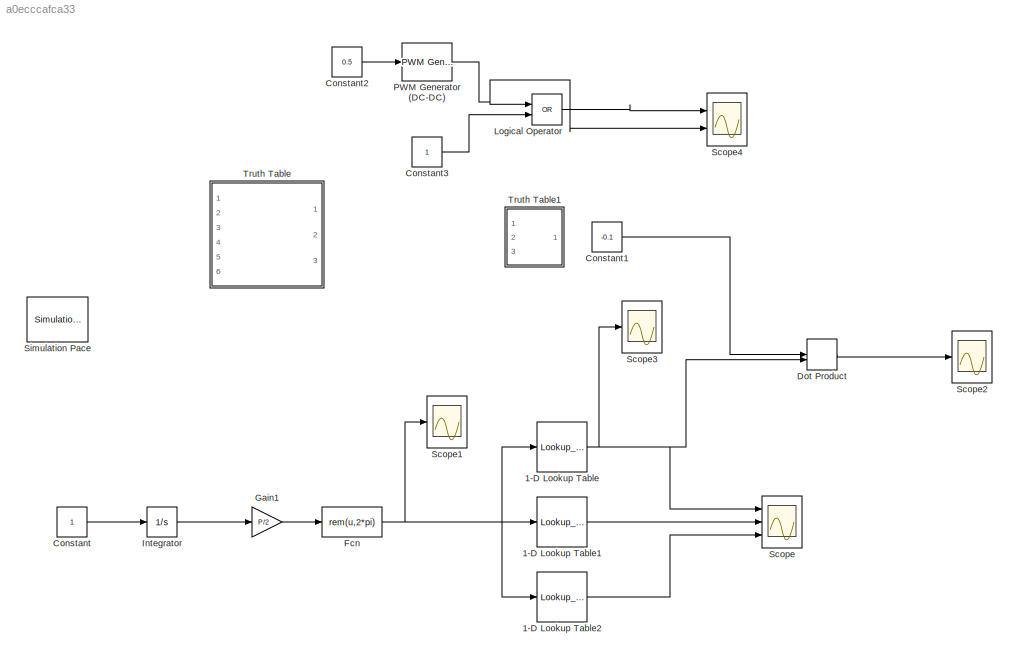
MODEL slx_a0ecccafca33
KIND model
CONFIG AbsTol = auto
CONFIG FixedStep = auto
CONFIG MaxStep = auto
CONFIG MinStep = auto
CONFIG RelTol = 1e-3
CONFIG SampleTimeConstraint = Unconstrained
CONFIG Solver = VariableStepAuto
CONFIG SolverMode = Auto
CONFIG SolverName = VariableStepAuto
CONFIG StartTime = 0.0
CONFIG StopTime = inf
BLOCK [Lookup_n-D] 1-D Lookup Table
  BreakpointsForDimension1 = 0:0.001:2*pi
  InternalRulePriority = Speed
  NumberOfTableDimensions = 1
  Ports = [1, 1]
  RndMeth = Simplest
  Table = trapezoid(0:0.001:2*pi,0)
BLOCK [Lookup_n-D] 1-D Lookup Table1
  BreakpointsForDimension1 = ((0:0.001:2*pi))
  InternalRulePriority = Speed
  NumberOfTableDimensions = 1
  Ports = [1, 1]
  RndMeth = Simplest
  Table = trapezoid(0:0.001:2*pi, 2/3*pi)
BLOCK [Lookup_n-D] 1-D Lookup Table2
  BreakpointsForDimension1 = (0:0.001:2*pi)
  InternalRulePriority = Speed
  NumberOfTableDimensions = 1
  Ports = [1, 1]
  RndMeth = Simplest
  Table = trapezoid(0:0.001:2*pi, 4/3*pi)
BLOCK [Constant] Constant
BLOCK [Constant] Constant1
  Value = -0.1
BLOCK [Constant] Constant2
  Value = 0.5
BLOCK [Constant] Constant3
BLOCK [DotProduct] Dot Product
  OutDataTypeStr = Inherit: Inherit via internal rule
BLOCK [Fcn] Fcn
  Expr = rem(u,2*pi)
BLOCK [Gain] Gain1
  Gain = P/2
  OutDataTypeStr = Inherit: Inherit via internal rule
  ParamDataTypeStr = Inherit: Inherit via internal rule
  SaturateOnIntegerOverflow = off
BLOCK [Integrator] Integrator
  Ports = [1, 1]
BLOCK [Logic] Logical Operator
  AllPortsSameDT = off
  Operator = OR
  OutDataTypeStr = boolean
  Ports = [2, 1]
BLOCK [Reference] PWM Generator (DC-DC)  REF=powerlib_meascontrol/Pulse & Signal
Generators/PWM Generator
(DC-DC)
  Ports = [1, 1]
  SourceBlock = powerlib_meascontrol/Pulse & Signal\nGenerators/PWM Generator\n(DC-DC)
  SourceType = PWM Generator (DC-DC)
BLOCK [Scope] Scope
  NumInputPorts = 3
  Ports = [3]
  ScopeSpecificationString = Simulink.scopes.TimeScopeBlockCfg('CurrentConfiguration', extmgr.ConfigurationSet(extmgr.Configuration('Core','General UI',true),extmgr.Configuration('Core','Source UI',true),extmgr.Configuration('Sources','WiredSimulink',true),extmgr.Configuration('Visuals','Time Domain',true,'SerializedDisplays',{struct('MinYLimReal','-1.25','MaxYLimReal','1.25','YLabelReal','','MinYLimMag','0.00000','MaxYLimMag...<+1570ch>
BLOCK [Scope] Scope1
  Ports = [1]
  ScopeSpecificationString = Simulink.scopes.TimeScopeBlockCfg('CurrentConfiguration', extmgr.ConfigurationSet(extmgr.Configuration('Core','General UI',true),extmgr.Configuration('Core','Source UI',true),extmgr.Configuration('Sources','WiredSimulink',true,'DataLoggingVariableName','ScopeData1'),extmgr.Configuration('Visuals','Time Domain',true,'SerializedDisplays',{struct('MinYLimReal','-0.78153','MaxYLimReal','7.03375','YLab...<+1575ch>
BLOCK [Scope] Scope2
  Ports = [1]
  ScopeSpecificationString = Simulink.scopes.TimeScopeBlockCfg('CurrentConfiguration', extmgr.ConfigurationSet(extmgr.Configuration('Core','General UI',true),extmgr.Configuration('Core','Source UI',true),extmgr.Configuration('Sources','WiredSimulink',true,'DataLoggingVariableName','ScopeData2'),extmgr.Configuration('Visuals','Time Domain',true,'SerializedDisplays',{struct('MinYLimReal','-0.125','MaxYLimReal','0.125','YLabelRe...<+1570ch>
BLOCK [Scope] Scope3
  Ports = [1]
  ScopeSpecificationString = Simulink.scopes.TimeScopeBlockCfg('CurrentConfiguration', extmgr.ConfigurationSet(extmgr.Configuration('Core','General UI',true),extmgr.Configuration('Core','Source UI',true),extmgr.Configuration('Sources','WiredSimulink',true,'DataLoggingVariableName','ScopeData1'),extmgr.Configuration('Visuals','Time Domain',true,'SerializedDisplays',{struct('MinYLimReal','-1.25','MaxYLimReal','1.25','YLabelReal...<+1571ch>
BLOCK [Scope] Scope4
  NumInputPorts = 2
  Ports = [2]
  ScopeSpecificationString = Simulink.scopes.TimeScopeBlockCfg('CurrentConfiguration', extmgr.ConfigurationSet(extmgr.Configuration('Core','General UI',true),extmgr.Configuration('Core','Source UI',true),extmgr.Configuration('Sources','WiredSimulink',true,'DataLoggingVariableName','ScopeData1'),extmgr.Configuration('Visuals','Time Domain',true,'SerializedDisplays',{struct('MinYLimReal','-0.125','MaxYLimReal','1.125','YLabelRe...<+1602ch>
BLOCK [Reference] Simulation Pace  REF=aerolibanimutils/Simulation Pace
  AttributesFormatString = %<SleepMode>\n%<SimulationPace> sec/sec
  Ports = []
  SourceBlock = aerolibanimutils/Simulation Pace
  SourceType = Simulation Pace
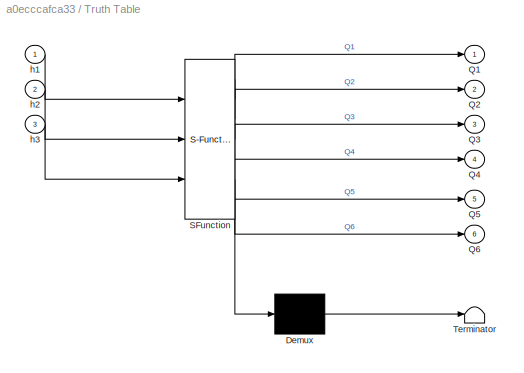
BLOCK [SubSystem] Truth Table
  ErrorFcn = Stateflow.Translate.translate
  PermitHierarchicalResolution = ExplicitOnly
  Ports = [3, 6]
  RequestExecContextInheritance = off
  SFBlockType = Truth Table
  TreatAsAtomicUnit = on
  Variant = off
BLOCK [Demux] Truth Table/ Demux 
  Outputs = 1
  Ports = [1, 1]
BLOCK [S-Function] Truth Table/ SFunction 
  EnableBusSupport = on
  FunctionName = sf_sfun
  PortCounts = [3 7]
  Ports = [3, 7]
  SFunctionDeploymentMode = off
  Tag = Stateflow S-Function simple_test 2
BLOCK [Terminator] Truth Table/ Terminator 
BLOCK [Outport] Truth Table/Q1
  IconDisplay = Port number
BLOCK [Outport] Truth Table/Q2
  IconDisplay = Port number
  Port = 2
BLOCK [Outport] Truth Table/Q3
  IconDisplay = Port number
  Port = 3
BLOCK [Outport] Truth Table/Q4
  IconDisplay = Port number
  Port = 4
BLOCK [Outport] Truth Table/Q5
  IconDisplay = Port number
  Port = 5
BLOCK [Outport] Truth Table/Q6
  IconDisplay = Port number
  Port = 6
BLOCK [Inport] Truth Table/h1
  IconDisplay = Port number
BLOCK [Inport] Truth Table/h2
  IconDisplay = Port number
  Port = 2
BLOCK [Inport] Truth Table/h3
  IconDisplay = Port number
  Port = 3
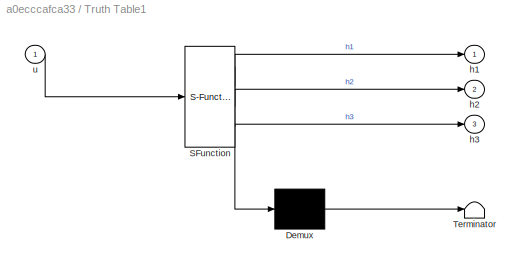
BLOCK [SubSystem] Truth Table1
  ErrorFcn = Stateflow.Translate.translate
  PermitHierarchicalResolution = ExplicitOnly
  Ports = [1, 3]
  RequestExecContextInheritance = off
  SFBlockType = Truth Table
  TreatAsAtomicUnit = on
  Variant = off
BLOCK [Demux] Truth Table1/ Demux 
  Outputs = 1
  Ports = [1, 1]
BLOCK [S-Function] Truth Table1/ SFunction 
  EnableBusSupport = on
  FunctionName = sf_sfun
  PortCounts = [1 4]
  Ports = [1, 4]
  SFunctionDeploymentMode = off
  Tag = Stateflow S-Function simple_test 1
BLOCK [Terminator] Truth Table1/ Terminator 
BLOCK [Outport] Truth Table1/h1
  IconDisplay = Port number
BLOCK [Outport] Truth Table1/h2
  IconDisplay = Port number
  Port = 2
BLOCK [Outport] Truth Table1/h3
  IconDisplay = Port number
  Port = 3
BLOCK [Inport] Truth Table1/u
  IconDisplay = Port number
LINE 1-D Lookup Table1:1 -> Scope:2
LINE 1-D Lookup Table2:1 -> Scope:3
NET 1-D Lookup Table:1 -> Dot Product:2, Scope3:1, Scope:1
LINE Constant1:1 -> Dot Product:1
LINE Constant2:1 -> PWM Generator (DC-DC):1
LINE Constant3:1 -> Logical Operator:2
LINE Constant:1 -> Integrator:1
LINE Dot Product:1 -> Scope2:1
NET Fcn:1 -> 1-D Lookup Table1:1, 1-D Lookup Table2:1, 1-D Lookup Table:1, Scope1:1
LINE Gain1:1 -> Fcn:1
LINE Integrator:1 -> Gain1:1
LINE Logical Operator:1 -> Scope4:1
NET PWM Generator (DC-DC):1 -> Logical Operator:1, Scope4:2
note: NET lines group one-source signal fan-out (src -> all destinations, sorted); 1:1 wires keep LINE
CHART Truth Table1 states=1 transitions=1
  STATE_LABEL 'tt_blk_kernel'
  STATE_LABEL 'SCRIPT:\nfunction [h1, h2, h3] = fcn(u)\n\naVarTruthTableCondition_1 = false;\naVarTruthTableCondition_2 = false;\naVarTruthTableCondition_3 = false;\naVarTruthTableCondition_4 = false;\naVarTruthTableCondition_5 = false;\naVarTruthTableCondition_6 = false;\n\n\n% 0 ~ 60\n\naVarTruthTableCondition_1 = logical(0 <= u && u < 1/3*pi);\n\n% 60 ~ 120\n\naVarTruthTableCondition_2 = logical(1/3*pi <= u && u < 2/3*pi);\n\n%...<+1909ch>'
CHART Truth Table states=1 transitions=1
  STATE_LABEL 'tt_blk_kernel'
  STATE_LABEL 'SCRIPT:\nfunction [Q1, Q2, Q3, Q4, Q5, Q6] = fcn(h1, h2, h3)\n\naVarTruthTableCondition_1 = false;\naVarTruthTableCondition_2 = false;\naVarTruthTableCondition_3 = false;\naVarTruthTableCondition_4 = false;\naVarTruthTableCondition_5 = false;\naVarTruthTableCondition_6 = false;\n\n\n% state 1\n\naVarTruthTableCondition_1 = logical(h1 == 1 && h2 == 0 && h3 == 1);\n\n% state 2\n\naVarTruthTableCondition_2 = logical(...<+2119ch>'
